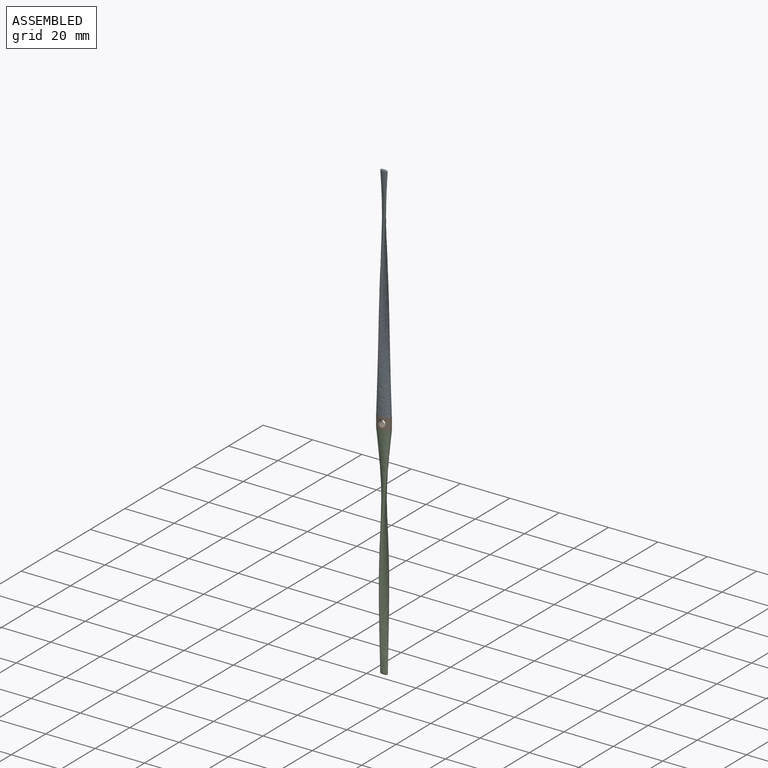
[diagram: assembled view]
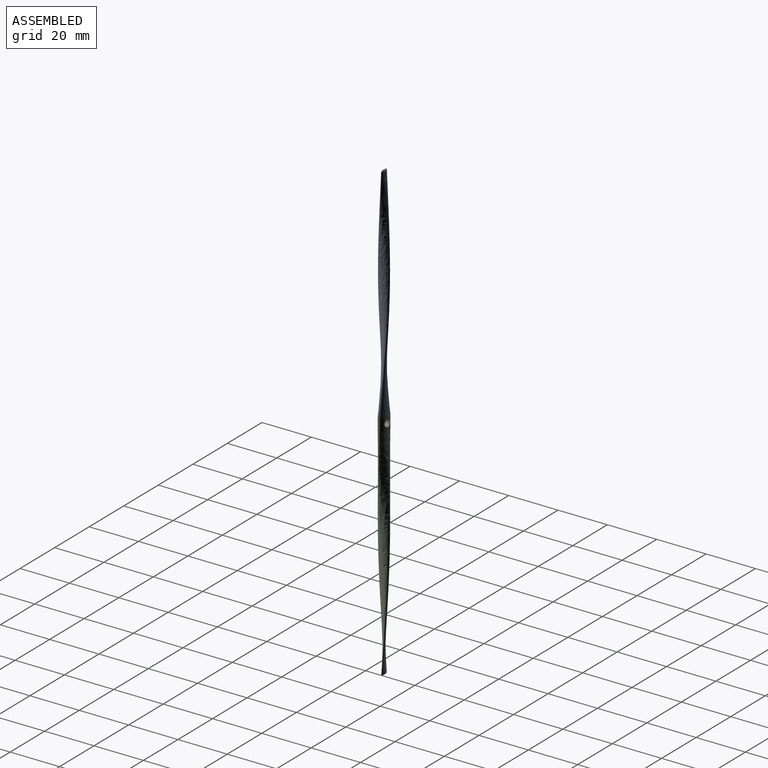
[diagram: assembled view, second angle]
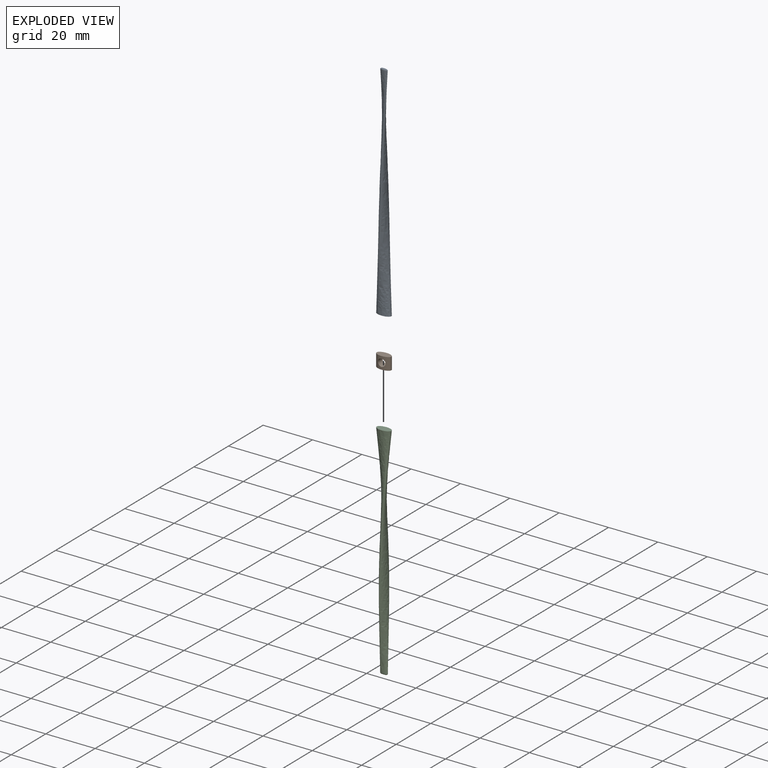
[diagram: exploded view]
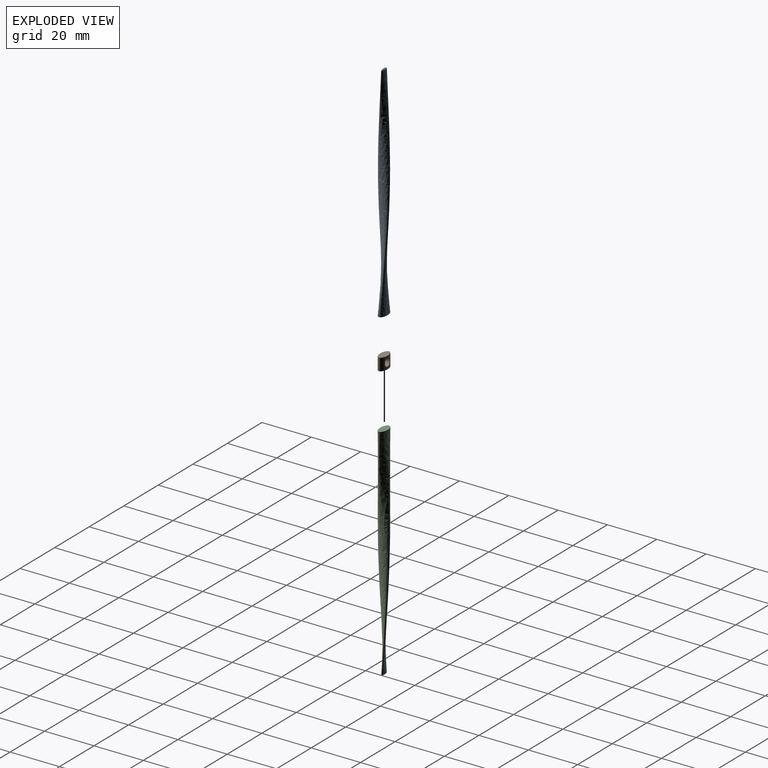
[diagram: exploded view, second angle]
ASSEMBLY  parts=3 mates=2
PART A: 9 faces, bbox 6x6.8x90 mm
  f0: plane 6x3mm, normal (0,0,-1), area 14.1mm2, adj f2
  f1: plane 0.48x0.02mm, normal (0,0,1), area 0mm2, adj f5,f6
  f2: bspline ~90x6.82mm, area 861.2mm2, adj f0,f3,f5,f6,f7
  f3: bspline ~0.59x0.3mm, area 0mm2, adj f2,f4,f5
  f4: bspline ~1.24x0.59mm, area 0.5mm2, adj f3,f5,f6
  f5: bspline ~2.65x0.7mm, area 1.6mm2, adj f1,f2,f3,f4,f8
  f6: bspline ~2.49x0.69mm, area 1.5mm2, adj f1,f2,f4,f7,f8
  f7: bspline ~0.59x0.3mm, area 0mm2, adj f2,f6,f8
  f8: bspline ~1.24x0.59mm, area 0.4mm2, adj f5,f6,f7
PART B: 4 faces, bbox 6x3x5 mm
  f0: extruded ~6x5mm, area 58.4mm2, adj f1,f2,f3
  f1: plane 6x3mm, normal (0,0,1), area 14.1mm2, adj f0
  f2: plane 6x3mm, normal (0,0,-1), area 14.1mm2, adj f0
  f3: cylinder r=1.5mm len=3mm, axis (0,-1,0), area 26.4mm2, adj f0
PART C: same geometry as A
PLACE A t=(0,1.52,2.5)mm
PLACE B rot(axis=(1,0,0),180deg) t=(-10.45,1.52,2.5)mm
PLACE C rot(axis=(1,0,0),180deg) t=(0,1.52,-2.5)mm
MATE fastened A.f0 <-> B.f2  axis (0,0,-1) through (0,1.52,2.5)mm
MATE fastened B.f1 <-> C.f0  axis (0,0,-1) through (0,1.52,-2.5)mm
